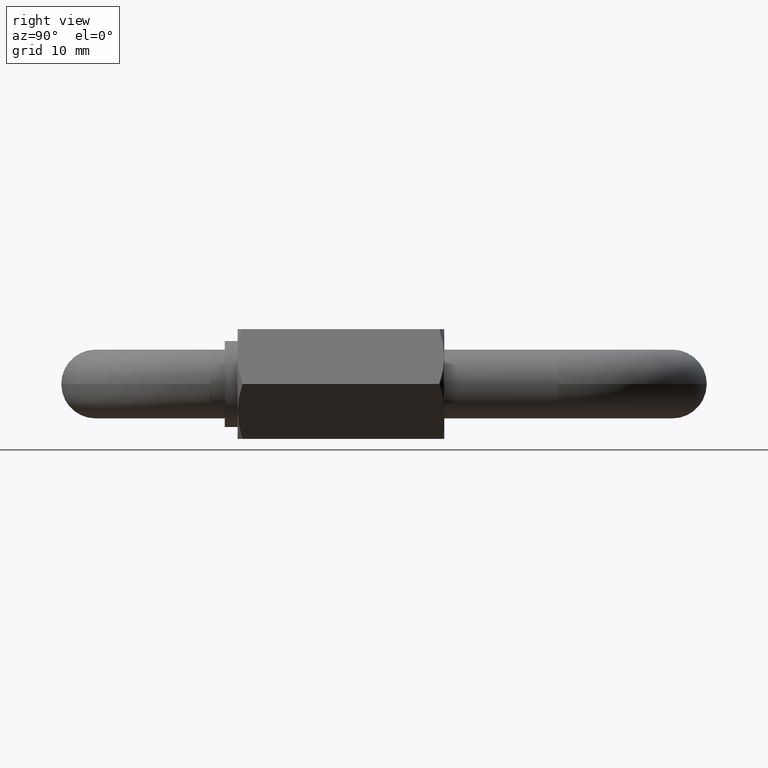
[diagram: clean part render]
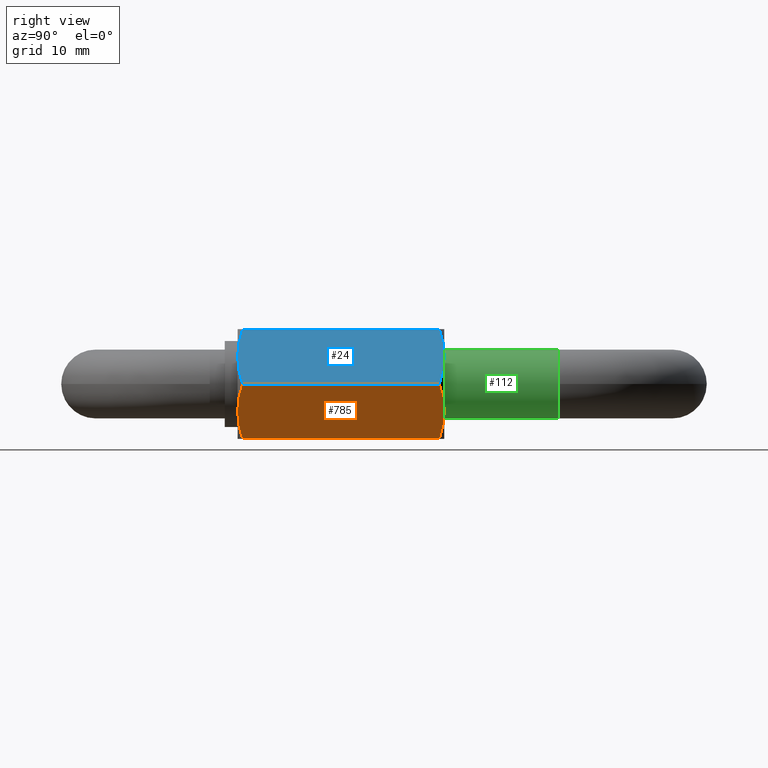
[diagram: same view with three faces highlighted in distinct colors, each labeled with its STEP entity id]
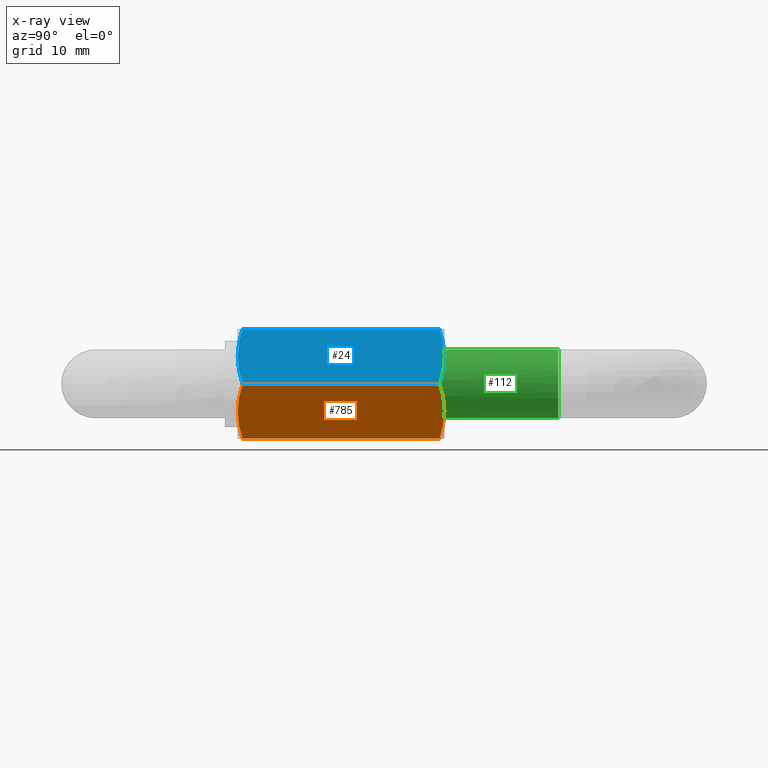
[diagram: x-ray of the same camera — body ghosted, the three highlighted faces saturated]
A machine part, right view with three faces highlighted in distinct colors.
The next image is the same camera in x-ray (body ghosted, the three faces saturated) — at least one of them is partly hidden behind the body in this view.
Their STEP definitions:

[orange] entity #785 — the highlighted planar face has unit normal (-0.866, 0, 0.5).
#42 = B_SPLINE_CURVE_WITH_KNOTS ( 'NONE', 3,
 ( #1667, #2001, #1044, #108, #729, #1202 ),
 .UNSPECIFIED., .F., .F.,
 ( 4, 2, 4 ),
 ( 2.380733146784377800E-007, 0.001862324446660184600, 0.003724410820005691000 ),
 .UNSPECIFIED. ) ;
#108 = CARTESIAN_POINT ( 'NONE',  ( -4.897742492384375100, -11.94573378285737600, -4.266861160801235000 ) ) ;
#147 = EDGE_CURVE ( 'NONE', #891, #1229, #1696, .T. ) ;
#159 = DIRECTION ( 'NONE',  ( -0.0000000000000000000, -1.000000000000000000, -0.0000000000000000000 ) ) ;
#168 = VERTEX_POINT ( 'NONE', #1046 ) ;
#204 = CARTESIAN_POINT ( 'NONE',  ( -5.520911949125795600, 12.00000000000000000, -3.187500000000000400 ) ) ;
#218 = CARTESIAN_POINT ( 'NONE',  ( -5.834445567572697800, 12.00000000000000500, -2.644443842969051800 ) ) ;
#239 = CARTESIAN_POINT ( 'NONE',  ( -4.897506526571823400, 11.93445956315976300, -4.267269865577421100 ) ) ;
#242 = CARTESIAN_POINT ( 'NONE',  ( -5.677092722888152900, -12.00000000000000700, -2.916986964678177000 ) ) ;
#276 = EDGE_CURVE ( 'NONE', #1229, #856, #1912, .T. ) ;
#369 = EDGE_LOOP ( 'NONE', ( #1785, #1389, #1369, #1546, #1494, #1200 ) ) ;
#397 = CARTESIAN_POINT ( 'NONE',  ( -7.060918196846800200, -11.60398494440873800, -0.5201309349737220900 ) ) ;
#409 = VECTOR ( 'NONE', #1702, 1000.000000000000000 ) ;
#506 = DIRECTION ( 'NONE',  ( 0.8660254037844386000, -0.0000000000000000000, 0.5000000000000001100 ) ) ;
#528 = PLANE ( 'NONE',  #630 ) ;
#580 = CARTESIAN_POINT ( 'NONE',  ( -3.680607966083863800, 11.43060796608387300, -6.374999999999999100 ) ) ;
#630 = AXIS2_PLACEMENT_3D ( 'NONE', #987, #506, #1595 ) ;
#645 = EDGE_CURVE ( 'NONE', #168, #891, #1981, .T. ) ;
#692 = CARTESIAN_POINT ( 'NONE',  ( -6.144317371679767000, -11.93445956315976300, -2.107730134422577600 ) ) ;
#708 = CARTESIAN_POINT ( 'NONE',  ( -7.060166630729623800, 11.60441886130907800, -0.5214326856739123200 ) ) ;
#729 = CARTESIAN_POINT ( 'NONE',  ( -5.207378330678894300, -12.00000000000000500, -3.730556157030948200 ) ) ;
#785 = ADVANCED_FACE ( 'NONE', ( #1449 ), #528, .F. ) ;
#803 = LINE ( 'NONE', #1358, #409 ) ;
#841 = CARTESIAN_POINT ( 'NONE',  ( -6.758115036728784600, -11.74711102147276900, -1.044601392990536700 ) ) ;
#856 = VERTEX_POINT ( 'NONE', #1329 ) ;
#864 = CARTESIAN_POINT ( 'NONE',  ( -5.833973814744299000, -11.98654167839438500, -2.645260942836451100 ) ) ;
#870 = EDGE_CURVE ( 'NONE', #1319, #1448, #1325, .T. ) ;
#891 = VERTEX_POINT ( 'NONE', #1478 ) ;
#959 = CARTESIAN_POINT ( 'NONE',  ( -3.680607966083863800, 11.43060796608387300, -6.374999999999999100 ) ) ;
#987 = CARTESIAN_POINT ( 'NONE',  ( -3.680607966083863800, 12.00000000000000000, -6.374999999999999100 ) ) ;
#1032 = CARTESIAN_POINT ( 'NONE',  ( -6.298451175321291700, -11.89588583083778800, -1.840762555351612500 ) ) ;
#1038 = CARTESIAN_POINT ( 'NONE',  ( -5.207850083507292300, 11.98654167839438700, -3.729739057163548500 ) ) ;
#1044 = CARTESIAN_POINT ( 'NONE',  ( -4.284905657175342800, -11.74761330462050200, -5.328325696132994300 ) ) ;
#1046 = CARTESIAN_POINT ( 'NONE',  ( -7.361215932167727500, 11.43060796608387100, -1.054950193259269800E-015 ) ) ;
#1169 = CARTESIAN_POINT ( 'NONE',  ( -5.520911949125795600, -12.00000000000000000, -3.187500000000000400 ) ) ;
#1195 = CARTESIAN_POINT ( 'NONE',  ( -7.361215932167727500, 11.43060796608387100, -1.054950193259269800E-015 ) ) ;
#1200 = ORIENTED_EDGE ( 'NONE', *, *, #147, .T. ) ;
#1202 = CARTESIAN_POINT ( 'NONE',  ( -5.520911949125795600, -12.00000000000000000, -3.187500000000000400 ) ) ;
#1219 = CARTESIAN_POINT ( 'NONE',  ( -7.361215932167727500, -11.43060796608387100, -1.054950193259269800E-015 ) ) ;
#1229 = VERTEX_POINT ( 'NONE', #959 ) ;
#1234 = CARTESIAN_POINT ( 'NONE',  ( -3.680607966083863800, 12.00000000000000000, -6.374999999999999100 ) ) ;
#1319 = VERTEX_POINT ( 'NONE', #1169 ) ;
#1325 = B_SPLINE_CURVE_WITH_KNOTS ( 'NONE', 3,
 ( #1640, #242, #864, #692, #1032, #841, #397, #1971 ),
 .UNSPECIFIED., .F., .F.,
 ( 4, 2, 2, 4 ),
 ( 0.003724410820005691000, 0.004651973522984846600, 0.005579536225964002200, 0.007434661631922311700 ),
 .UNSPECIFIED. ) ;
#1327 = CARTESIAN_POINT ( 'NONE',  ( -4.283708861522809400, 11.74711102147276700, -5.330398607009462900 ) ) ;
#1329 = CARTESIAN_POINT ( 'NONE',  ( -3.680607966083863800, -11.43060796608387300, -6.374999999999999100 ) ) ;
#1345 = CARTESIAN_POINT ( 'NONE',  ( -5.520911949125795600, 12.00000000000000000, -3.187500000000000400 ) ) ;
#1358 = CARTESIAN_POINT ( 'NONE',  ( -7.361215932167727500, 12.00000000000000000, -8.836784281954936800E-016 ) ) ;
#1369 = ORIENTED_EDGE ( 'NONE', *, *, #870, .T. ) ;
#1389 = ORIENTED_EDGE ( 'NONE', *, *, #1584, .T. ) ;
#1448 = VERTEX_POINT ( 'NONE', #1219 ) ;
#1449 = FACE_OUTER_BOUND ( 'NONE', #369, .T. ) ;
#1454 = CARTESIAN_POINT ( 'NONE',  ( -6.144081405867215300, 11.94573378285737600, -2.108138839198765900 ) ) ;
#1474 = CARTESIAN_POINT ( 'NONE',  ( -4.743372722930299500, 11.89588583083778400, -4.534237444648388400 ) ) ;
#1478 = CARTESIAN_POINT ( 'NONE',  ( -5.520911949125795600, 12.00000000000000000, -3.187500000000000400 ) ) ;
#1483 = CARTESIAN_POINT ( 'NONE',  ( -3.980905701404793300, 11.60398494440873500, -5.854869065026277600 ) ) ;
#1494 = ORIENTED_EDGE ( 'NONE', *, *, #645, .T. ) ;
#1546 = ORIENTED_EDGE ( 'NONE', *, *, #1628, .F. ) ;
#1584 = EDGE_CURVE ( 'NONE', #856, #1319, #42, .T. ) ;
#1595 = DIRECTION ( 'NONE',  ( 0.5000000000000001100, 0.0000000000000000000, -0.8660254037844386000 ) ) ;
#1628 = EDGE_CURVE ( 'NONE', #168, #1448, #803, .T. ) ;
#1640 = CARTESIAN_POINT ( 'NONE',  ( -5.520911949125795600, -12.00000000000000000, -3.187500000000000400 ) ) ;
#1644 = VECTOR ( 'NONE', #159, 1000.000000000000000 ) ;
#1667 = CARTESIAN_POINT ( 'NONE',  ( -3.680607966083863800, -11.43060796608387300, -6.374999999999999100 ) ) ;
#1696 = B_SPLINE_CURVE_WITH_KNOTS ( 'NONE', 3,
 ( #1345, #1831, #1038, #239, #1474, #1327, #1483, #580 ),
 .UNSPECIFIED., .F., .F.,
 ( 4, 2, 2, 4 ),
 ( 0.003724410820005691900, 0.004651973522984846600, 0.005579536225964000500, 0.007434661631922311700 ),
 .UNSPECIFIED. ) ;
#1702 = DIRECTION ( 'NONE',  ( -0.0000000000000000000, -1.000000000000000000, -0.0000000000000000000 ) ) ;
#1785 = ORIENTED_EDGE ( 'NONE', *, *, #276, .T. ) ;
#1831 = CARTESIAN_POINT ( 'NONE',  ( -5.364731175363439200, 12.00000000000000500, -3.458013035321822100 ) ) ;
#1912 = LINE ( 'NONE', #1234, #1644 ) ;
#1971 = CARTESIAN_POINT ( 'NONE',  ( -7.361215932167727500, -11.43060796608387100, -1.054950193259269800E-015 ) ) ;
#1981 = B_SPLINE_CURVE_WITH_KNOTS ( 'NONE', 3,
 ( #1195, #708, #1992, #1454, #218, #204 ),
 .UNSPECIFIED., .F., .F.,
 ( 4, 2, 4 ),
 ( 2.380733146787095500E-007, 0.001862324446660185200, 0.003724410820005691900 ),
 .UNSPECIFIED. ) ;
#1992 = CARTESIAN_POINT ( 'NONE',  ( -6.756918241076249400, 11.74761330462050200, -1.046674303867006600 ) ) ;
#2001 = CARTESIAN_POINT ( 'NONE',  ( -3.981657267521967000, -11.60441886130907800, -5.853567314326087800 ) ) ;

[blue] entity #24 — the highlighted planar face has unit normal (-0.866, 0, -0.5).
#24 = ADVANCED_FACE ( 'NONE', ( #196 ), #552, .F. ) ;
#27 = LINE ( 'NONE', #1498, #1226 ) ;
#28 = B_SPLINE_CURVE_WITH_KNOTS ( 'NONE', 3,
 ( #415, #1963, #1803, #1819, #1632, #534 ),
 .UNSPECIFIED., .F., .F.,
 ( 4, 2, 4 ),
 ( 0.01056313015747193700, 0.01242760228827470700, 0.01429207441907747800 ),
 .UNSPECIFIED. ) ;
#70 = B_SPLINE_CURVE_WITH_KNOTS ( 'NONE', 3,
 ( #1388, #609, #444, #156, #597, #319 ),
 .UNSPECIFIED., .F., .F.,
 ( 4, 2, 4 ),
 ( 0.006837063551591597000, 0.008700096854531767400, 0.01056313015747193700 ),
 .UNSPECIFIED. ) ;
#87 = CARTESIAN_POINT ( 'NONE',  ( -1.240752088391596800, -11.94641311436280700, -6.375000000000000000 ) ) ;
#145 = EDGE_CURVE ( 'NONE', #839, #1396, #27, .T. ) ;
#156 = CARTESIAN_POINT ( 'NONE',  ( -1.240752088391595500, 11.94641311436280900, -6.374999999999996400 ) ) ;
#159 = DIRECTION ( 'NONE',  ( -0.0000000000000000000, -1.000000000000000000, -0.0000000000000000000 ) ) ;
#196 = FACE_OUTER_BOUND ( 'NONE', #1194, .T. ) ;
#203 = CARTESIAN_POINT ( 'NONE',  ( -7.511572993685798100E-016, 12.00000000000000000, -6.375000000000000000 ) ) ;
#276 = EDGE_CURVE ( 'NONE', #1229, #856, #1912, .T. ) ;
#319 = CARTESIAN_POINT ( 'NONE',  ( -7.511572993685798100E-016, 12.00000000000000000, -6.375000000000000000 ) ) ;
#325 = VERTEX_POINT ( 'NONE', #1091 ) ;
#411 = CARTESIAN_POINT ( 'NONE',  ( -7.511572993685798100E-016, -12.00000000000000000, -6.375000000000000000 ) ) ;
#415 = CARTESIAN_POINT ( 'NONE',  ( -7.511572993685798100E-016, 12.00000000000000000, -6.375000000000000000 ) ) ;
#444 = CARTESIAN_POINT ( 'NONE',  ( -2.468538685671846500, 11.74839692267710100, -6.375000000000000000 ) ) ;
#534 = CARTESIAN_POINT ( 'NONE',  ( 3.680607966083862400, 11.43060796608387100, -6.375000000000000000 ) ) ;
#552 = PLANE ( 'NONE',  #868 ) ;
#564 = CARTESIAN_POINT ( 'NONE',  ( 1.254302091546643600, -11.94489549746617900, -6.375000000000000900 ) ) ;
#597 = CARTESIAN_POINT ( 'NONE',  ( -0.6227813049715448200, 12.00000000000000200, -6.374999999999999100 ) ) ;
#609 = CARTESIAN_POINT ( 'NONE',  ( -3.081209851861956000, 11.60363929738276800, -6.374999999999998200 ) ) ;
#615 = EDGE_CURVE ( 'NONE', #325, #856, #1949, .T. ) ;
#621 = ORIENTED_EDGE ( 'NONE', *, *, #615, .T. ) ;
#695 = CARTESIAN_POINT ( 'NONE',  ( 0.6232622813944998000, -12.00000000000000000, -6.375000000000000900 ) ) ;
#716 = CARTESIAN_POINT ( 'NONE',  ( -2.468538685671845200, -11.74839692267709300, -6.374999999999996400 ) ) ;
#812 = EDGE_CURVE ( 'NONE', #1939, #839, #28, .T. ) ;
#839 = VERTEX_POINT ( 'NONE', #860 ) ;
#840 = CARTESIAN_POINT ( 'NONE',  ( 3.680607966083862900, -11.43060796608387100, -6.375000000000000000 ) ) ;
#842 = ORIENTED_EDGE ( 'NONE', *, *, #2020, .T. ) ;
#856 = VERTEX_POINT ( 'NONE', #1329 ) ;
#860 = CARTESIAN_POINT ( 'NONE',  ( 3.680607966083862400, 11.43060796608387100, -6.375000000000000000 ) ) ;
#868 = AXIS2_PLACEMENT_3D ( 'NONE', #1342, #1637, #1812 ) ;
#872 = ORIENTED_EDGE ( 'NONE', *, *, #1748, .T. ) ;
#886 = ORIENTED_EDGE ( 'NONE', *, *, #276, .F. ) ;
#959 = CARTESIAN_POINT ( 'NONE',  ( -3.680607966083863800, 11.43060796608387300, -6.374999999999999100 ) ) ;
#1016 = CARTESIAN_POINT ( 'NONE',  ( -0.6227813049715473800, -12.00000000000000000, -6.374999999999998200 ) ) ;
#1026 = CARTESIAN_POINT ( 'NONE',  ( -3.081209851861958200, -11.60363929738276800, -6.374999999999999100 ) ) ;
#1091 = CARTESIAN_POINT ( 'NONE',  ( -7.511572993685798100E-016, -12.00000000000000000, -6.375000000000000000 ) ) ;
#1194 = EDGE_LOOP ( 'NONE', ( #1517, #842, #621, #886, #872, #1214 ) ) ;
#1214 = ORIENTED_EDGE ( 'NONE', *, *, #812, .T. ) ;
#1226 = VECTOR ( 'NONE', #1653, 1000.000000000000000 ) ;
#1229 = VERTEX_POINT ( 'NONE', #959 ) ;
#1234 = CARTESIAN_POINT ( 'NONE',  ( -3.680607966083863800, 12.00000000000000000, -6.374999999999999100 ) ) ;
#1329 = CARTESIAN_POINT ( 'NONE',  ( -3.680607966083863800, -11.43060796608387300, -6.374999999999999100 ) ) ;
#1342 = CARTESIAN_POINT ( 'NONE',  ( 3.680607966083862900, 12.00000000000000000, -6.375000000000000000 ) ) ;
#1388 = CARTESIAN_POINT ( 'NONE',  ( -3.680607966083863800, 11.43060796608387300, -6.374999999999999100 ) ) ;
#1396 = VERTEX_POINT ( 'NONE', #1470 ) ;
#1470 = CARTESIAN_POINT ( 'NONE',  ( 3.680607966083862900, -11.43060796608387100, -6.375000000000000000 ) ) ;
#1498 = CARTESIAN_POINT ( 'NONE',  ( 3.680607966083862900, 12.00000000000000000, -6.375000000000000000 ) ) ;
#1517 = ORIENTED_EDGE ( 'NONE', *, *, #145, .T. ) ;
#1610 = B_SPLINE_CURVE_WITH_KNOTS ( 'NONE', 3,
 ( #840, #1795, #1818, #564, #695, #1979 ),
 .UNSPECIFIED., .F., .F.,
 ( 4, 2, 4 ),
 ( 0.01744009833681630900, 0.01930475198163280800, 0.02116940562644930400 ),
 .UNSPECIFIED. ) ;
#1632 = CARTESIAN_POINT ( 'NONE',  ( 3.085272559144391000, 11.60246649481118000, -6.375000000000000900 ) ) ;
#1637 = DIRECTION ( 'NONE',  ( 1.178285959793850800E-016, -0.0000000000000000000, 1.000000000000000000 ) ) ;
#1644 = VECTOR ( 'NONE', #159, 1000.000000000000000 ) ;
#1653 = DIRECTION ( 'NONE',  ( -0.0000000000000000000, -1.000000000000000000, -0.0000000000000000000 ) ) ;
#1748 = EDGE_CURVE ( 'NONE', #1229, #1939, #70, .T. ) ;
#1795 = CARTESIAN_POINT ( 'NONE',  ( 3.085272559144389700, -11.60246649481118200, -6.375000000000000900 ) ) ;
#1803 = CARTESIAN_POINT ( 'NONE',  ( 1.254302091546644500, 11.94489549746617600, -6.375000000000000900 ) ) ;
#1812 = DIRECTION ( 'NONE',  ( 1.000000000000000000, 0.0000000000000000000, -1.178285959793850800E-016 ) ) ;
#1818 = CARTESIAN_POINT ( 'NONE',  ( 2.482444197085556900, -11.74547144158468500, -6.375000000000000900 ) ) ;
#1819 = CARTESIAN_POINT ( 'NONE',  ( 2.482444197085556000, 11.74547144158468400, -6.374999999999999100 ) ) ;
#1829 = CARTESIAN_POINT ( 'NONE',  ( -3.680607966083863800, -11.43060796608387300, -6.374999999999999100 ) ) ;
#1912 = LINE ( 'NONE', #1234, #1644 ) ;
#1939 = VERTEX_POINT ( 'NONE', #203 ) ;
#1949 = B_SPLINE_CURVE_WITH_KNOTS ( 'NONE', 3,
 ( #411, #1016, #87, #716, #1026, #1829 ),
 .UNSPECIFIED., .F., .F.,
 ( 4, 2, 4 ),
 ( 0.02116940562644930400, 0.02303262030332740200, 0.02489583498020550200 ),
 .UNSPECIFIED. ) ;
#1963 = CARTESIAN_POINT ( 'NONE',  ( 0.6232622813945017900, 12.00000000000000000, -6.375000000000000900 ) ) ;
#1979 = CARTESIAN_POINT ( 'NONE',  ( -7.511572993685798100E-016, -12.00000000000000000, -6.375000000000000000 ) ) ;
#2020 = EDGE_CURVE ( 'NONE', #1396, #325, #1610, .T. ) ;

[green] entity #112 — the highlighted cylindrical surface (edge-blend (fillet) strip) has radius 4 mm, axis along (-0, -1, -0).
#74 = CARTESIAN_POINT ( 'NONE',  ( 13.24999999999999600, 20.24999999999999300, 0.0000000000000000000 ) ) ;
#96 = DIRECTION ( 'NONE',  ( 0.0000000000000000000, 0.0000000000000000000, 1.000000000000000000 ) ) ;
#100 = DIRECTION ( 'NONE',  ( 0.0000000000000000000, 0.0000000000000000000, -1.000000000000000000 ) ) ;
#112 = ADVANCED_FACE ( 'NONE', ( #150 ), #450, .T. ) ;
#131 = EDGE_CURVE ( 'NONE', #1099, #1159, #393, .T. ) ;
#150 = FACE_OUTER_BOUND ( 'NONE', #823, .T. ) ;
#247 = AXIS2_PLACEMENT_3D ( 'NONE', #710, #1631, #96 ) ;
#338 = VECTOR ( 'NONE', #1400, 1000.000000000000000 ) ;
#393 = CIRCLE ( 'NONE', #247, 3.999999999999997300 ) ;
#414 = DIRECTION ( 'NONE',  ( 0.0000000000000000000, 0.0000000000000000000, -1.000000000000000000 ) ) ;
#450 = CYLINDRICAL_SURFACE ( 'NONE', #1541, 3.999999999999997300 ) ;
#513 = VERTEX_POINT ( 'NONE', #1142 ) ;
#710 = CARTESIAN_POINT ( 'NONE',  ( 13.24999999999999600, 20.24999999999999300, 0.0000000000000000000 ) ) ;
#715 = CARTESIAN_POINT ( 'NONE',  ( 13.24999999999999600, 6.166025403784432000, 0.0000000000000000000 ) ) ;
#739 = LINE ( 'NONE', #928, #338 ) ;
#756 = VECTOR ( 'NONE', #1731, 1000.000000000000000 ) ;
#760 = CARTESIAN_POINT ( 'NONE',  ( 13.24999999999999600, 20.24999999999999300, 3.999999999999997300 ) ) ;
#817 = VERTEX_POINT ( 'NONE', #1656 ) ;
#823 = EDGE_LOOP ( 'NONE', ( #1753, #1519, #1852, #1500, #1198 ) ) ;
#837 = AXIS2_PLACEMENT_3D ( 'NONE', #715, #1507, #100 ) ;
#928 = CARTESIAN_POINT ( 'NONE',  ( 13.24999999999999600, 20.24999999999999300, -3.999999999999997300 ) ) ;
#1084 = CARTESIAN_POINT ( 'NONE',  ( 13.24999999999999600, 20.24999999999999300, 3.999999999999997300 ) ) ;
#1095 = VERTEX_POINT ( 'NONE', #1408 ) ;
#1099 = VERTEX_POINT ( 'NONE', #1084 ) ;
#1116 = EDGE_CURVE ( 'NONE', #513, #817, #739, .T. ) ;
#1142 = CARTESIAN_POINT ( 'NONE',  ( 13.24999999999999600, 20.24999999999999300, -3.999999999999997300 ) ) ;
#1156 = EDGE_CURVE ( 'NONE', #1159, #513, #2013, .T. ) ;
#1159 = VERTEX_POINT ( 'NONE', #1931 ) ;
#1198 = ORIENTED_EDGE ( 'NONE', *, *, #1156, .F. ) ;
#1260 = LINE ( 'NONE', #760, #756 ) ;
#1400 = DIRECTION ( 'NONE',  ( -0.0000000000000000000, -1.000000000000000000, -0.0000000000000000000 ) ) ;
#1408 = CARTESIAN_POINT ( 'NONE',  ( 13.24999999999999600, 6.166025403784432000, 3.999999999999997300 ) ) ;
#1435 = DIRECTION ( 'NONE',  ( 0.0000000000000000000, 1.000000000000000000, 0.0000000000000000000 ) ) ;
#1500 = ORIENTED_EDGE ( 'NONE', *, *, #1116, .F. ) ;
#1507 = DIRECTION ( 'NONE',  ( -0.0000000000000000000, 1.000000000000000000, -0.0000000000000000000 ) ) ;
#1519 = ORIENTED_EDGE ( 'NONE', *, *, #1781, .T. ) ;
#1541 = AXIS2_PLACEMENT_3D ( 'NONE', #74, #1646, #414 ) ;
#1553 = EDGE_CURVE ( 'NONE', #1095, #817, #1645, .T. ) ;
#1589 = CARTESIAN_POINT ( 'NONE',  ( 13.24999999999999600, 20.24999999999999300, 0.0000000000000000000 ) ) ;
#1631 = DIRECTION ( 'NONE',  ( 0.0000000000000000000, 1.000000000000000000, 0.0000000000000000000 ) ) ;
#1645 = CIRCLE ( 'NONE', #837, 3.999999999999997300 ) ;
#1646 = DIRECTION ( 'NONE',  ( -0.0000000000000000000, -1.000000000000000000, -0.0000000000000000000 ) ) ;
#1656 = CARTESIAN_POINT ( 'NONE',  ( 13.24999999999999600, 6.166025403784432000, -3.999999999999997300 ) ) ;
#1731 = DIRECTION ( 'NONE',  ( -0.0000000000000000000, -1.000000000000000000, -0.0000000000000000000 ) ) ;
#1736 = AXIS2_PLACEMENT_3D ( 'NONE', #1589, #1435, #1775 ) ;
#1753 = ORIENTED_EDGE ( 'NONE', *, *, #131, .F. ) ;
#1775 = DIRECTION ( 'NONE',  ( 0.0000000000000000000, 0.0000000000000000000, 1.000000000000000000 ) ) ;
#1781 = EDGE_CURVE ( 'NONE', #1099, #1095, #1260, .T. ) ;
#1852 = ORIENTED_EDGE ( 'NONE', *, *, #1553, .T. ) ;
#1931 = CARTESIAN_POINT ( 'NONE',  ( 17.24999999999999300, 20.24999999999999300, 0.0000000000000000000 ) ) ;
#2013 = CIRCLE ( 'NONE', #1736, 3.999999999999997300 ) ;